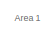
[diagram: root canvas - part 1/9, top center region]
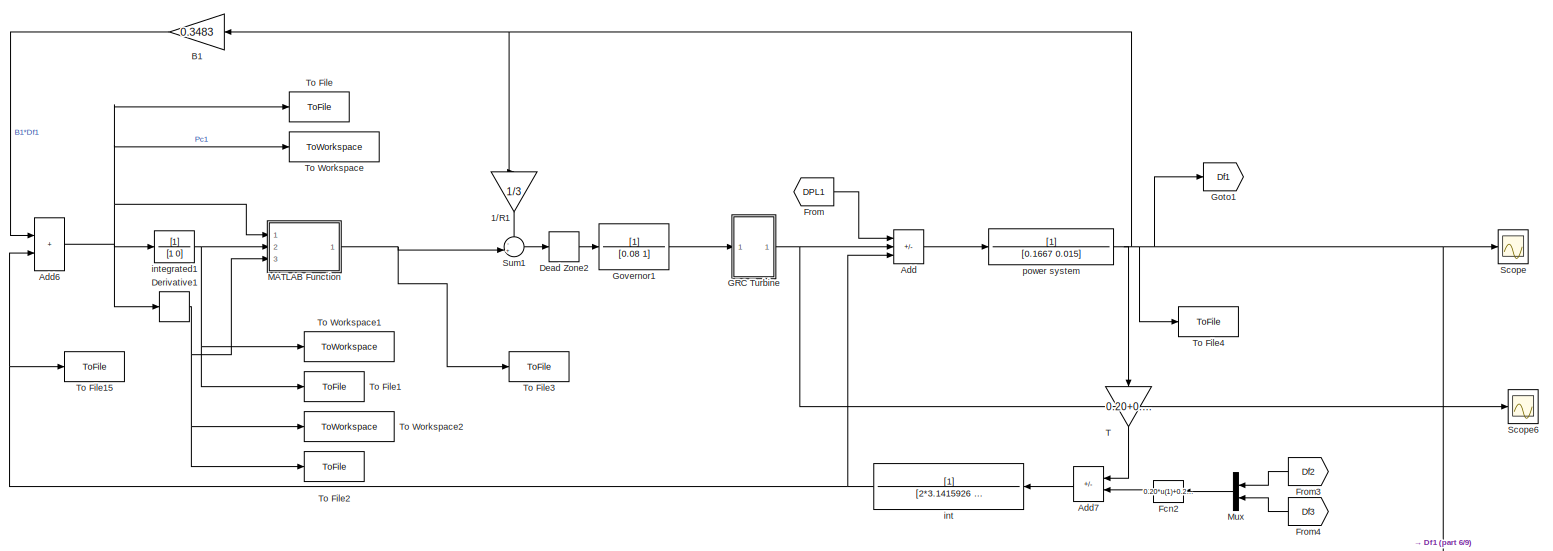
[diagram: root canvas - part 2/9, top right region]
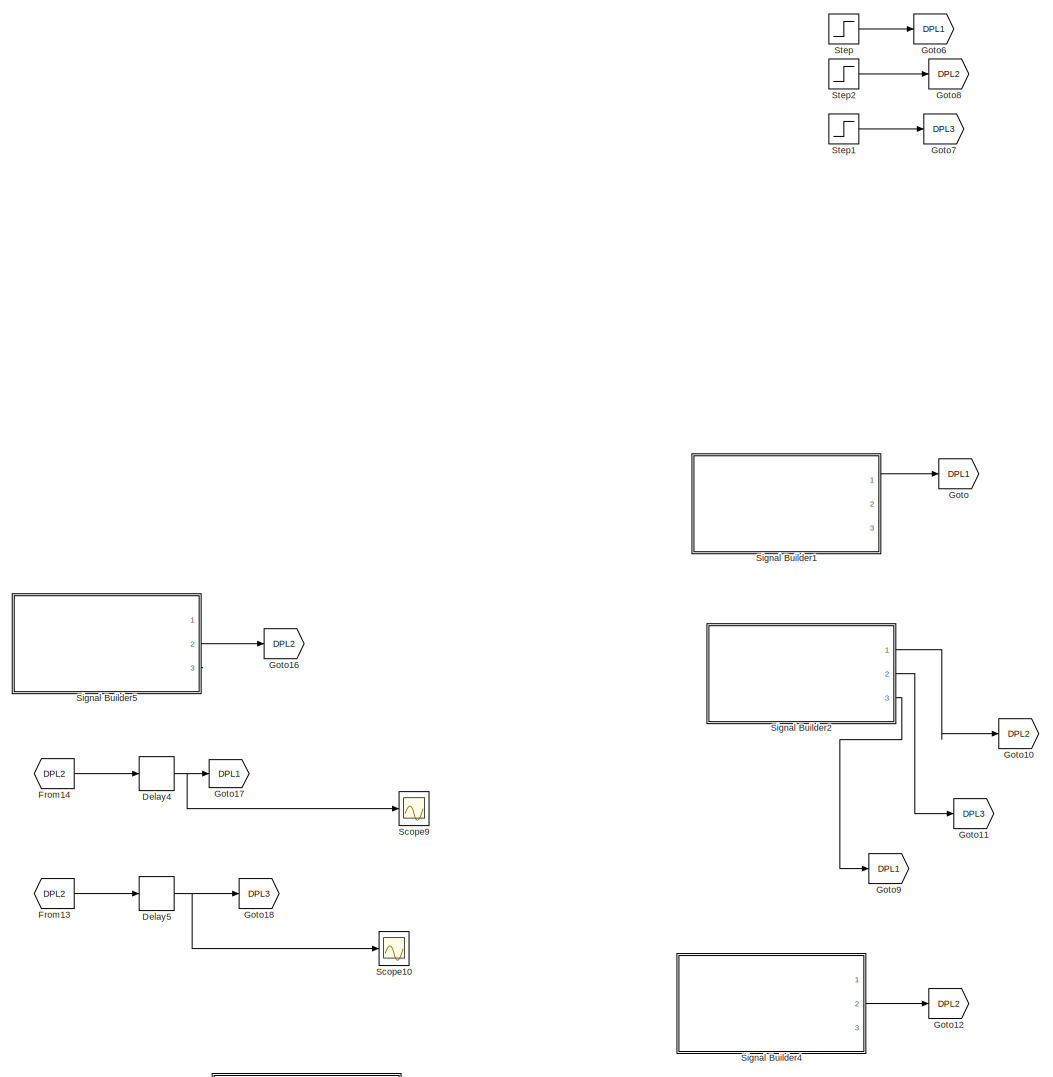
[diagram: root canvas - part 3/9, middle left region]
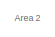
[diagram: root canvas - part 4/9, top center region]
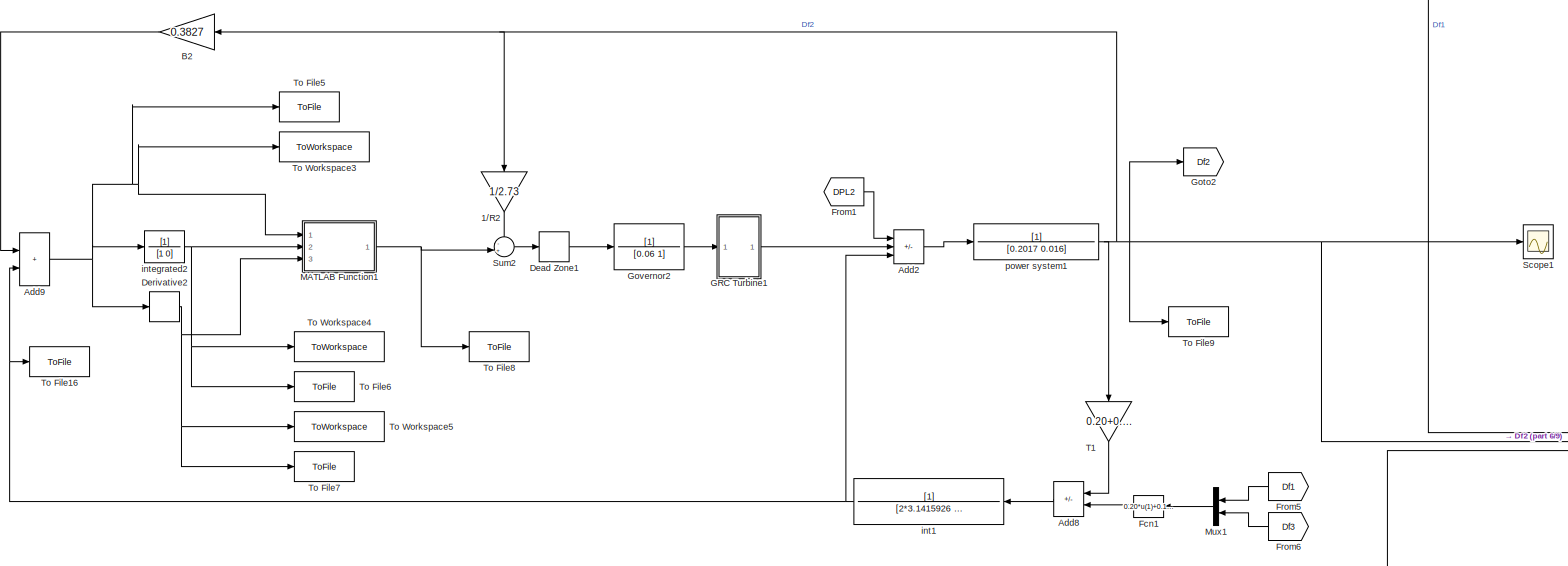
[diagram: root canvas - part 5/9, middle right region]
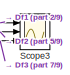
[diagram: root canvas - part 6/9, middle right region]
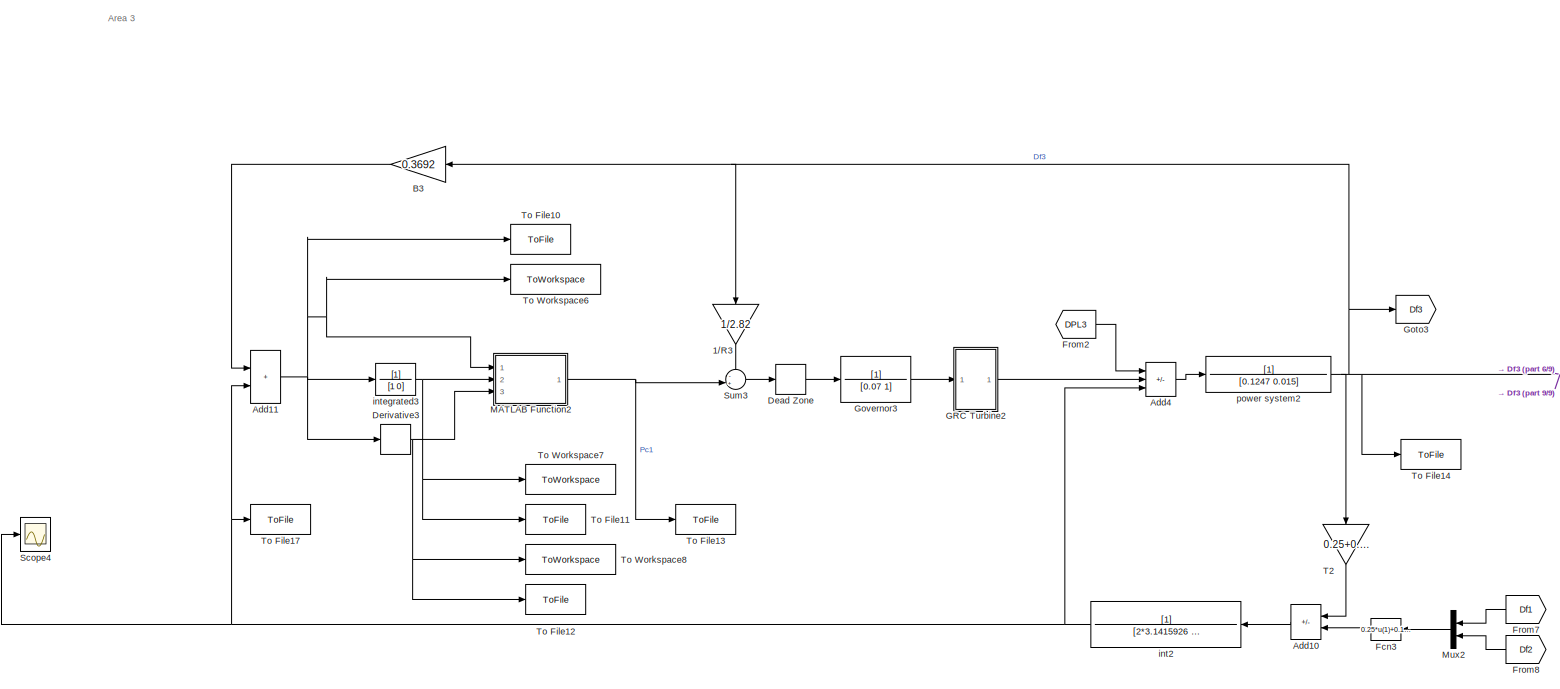
[diagram: root canvas - part 7/9, bottom right region]
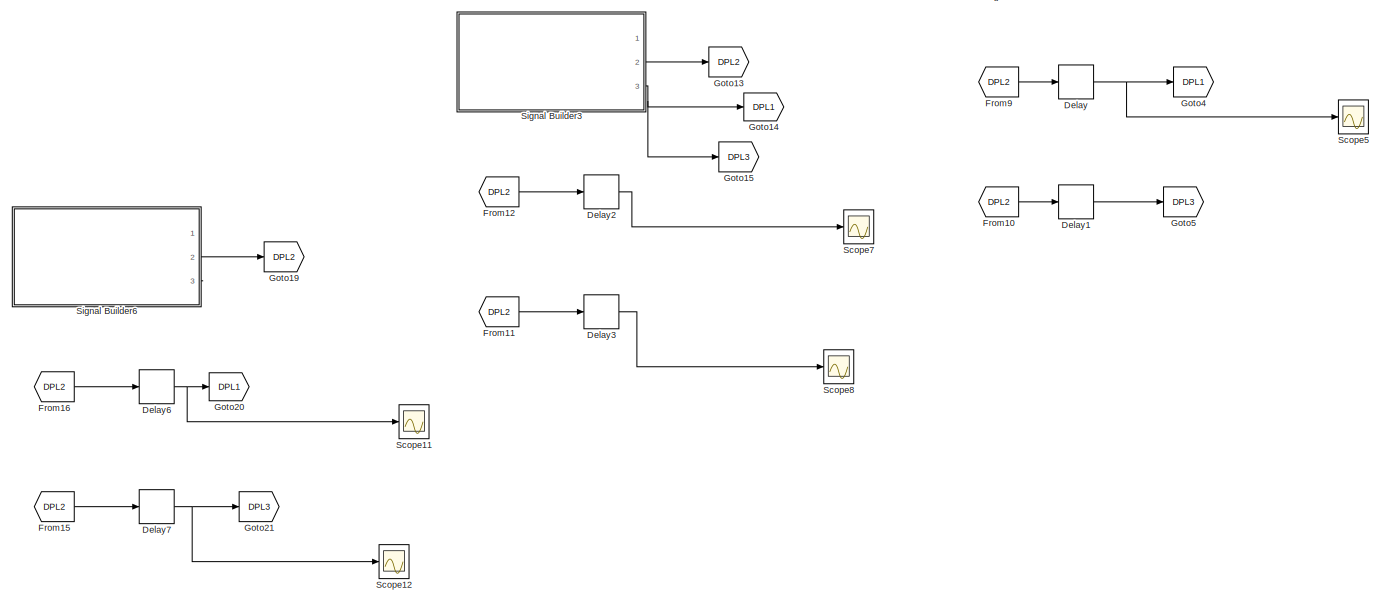
[diagram: root canvas - part 8/9, bottom left region]
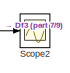
[diagram: root canvas - part 9/9, bottom right region]
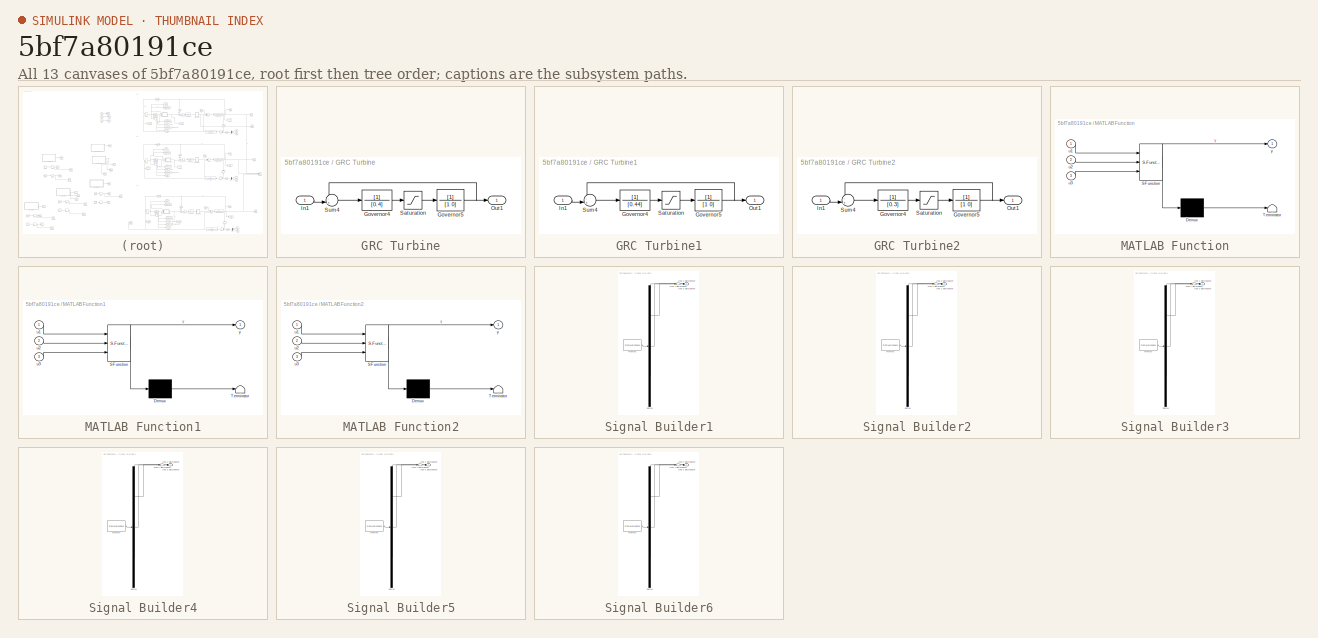
[diagram: thumbnail index - all 13 canvases of the model, root first then tree order]
MODEL slx_5bf7a80191ce
KIND model
CONFIG AbsTol = auto
CONFIG EnableMultiTasking = off
CONFIG FixedStep = 0.01
CONFIG MaxStep = auto
CONFIG MinStep = auto
CONFIG RelTol = 1e-3
CONFIG SampleTimeConstraint = Unconstrained
CONFIG SolverName = FixedStepAuto
CONFIG StartTime = 0.0
CONFIG StopTime = 350
BLOCK [Gain] 1//R1
  Gain = 1/3
  NameLocation = left
BLOCK [Gain] 1//R2
  Gain = 1/2.73
  NameLocation = left
BLOCK [Gain] 1//R3
  Gain = 1/2.82
  NameLocation = left
BLOCK [Sum] Add
  IconShape = rectangular
  Inputs = -+-
  Ports = [3, 1]
BLOCK [Sum] Add10
  IconShape = rectangular
  Inputs = +-
  NameLocation = top
  Ports = [2, 1]
BLOCK [Sum] Add11
  IconShape = rectangular
  Ports = [2, 1]
BLOCK [Sum] Add2
  IconShape = rectangular
  Inputs = -+-
  Ports = [3, 1]
BLOCK [Sum] Add4
  IconShape = rectangular
  Inputs = -+-
  Ports = [3, 1]
BLOCK [Sum] Add6
  IconShape = rectangular
  Ports = [2, 1]
BLOCK [Sum] Add7
  IconShape = rectangular
  Inputs = +-
  NameLocation = top
  Ports = [2, 1]
BLOCK [Sum] Add8
  IconShape = rectangular
  Inputs = +-
  NameLocation = top
  Ports = [2, 1]
BLOCK [Sum] Add9
  IconShape = rectangular
  Ports = [2, 1]
BLOCK [Gain] B1
  Gain = 0.3483
  NameLocation = top
BLOCK [Gain] B2
  Gain = 0.3827
  NameLocation = top
BLOCK [Gain] B3
  Gain = 0.3692
  NameLocation = top
BLOCK [DeadZone] Dead Zone
  LowerValue = -0.036
  UpperValue = 0.036
BLOCK [DeadZone] Dead Zone1
  LowerValue = -0.036
  UpperValue = 0.036
BLOCK [DeadZone] Dead Zone2
  LowerValue = -0.036
  UpperValue = 0.036
BLOCK [Delay] Delay
  Commented = on
  DelayLength = 3000
  InitialCondition = 0
  InputPortMap = u0
  Ports = [1, 1]
BLOCK [Delay] Delay1
  Commented = on
  DelayLength = 6000
  InitialCondition = 0
  InputPortMap = u0
  Ports = [1, 1]
BLOCK [Delay] Delay2
  Commented = on
  DelayLength = 3000
  InitialCondition = 0
  InputPortMap = u0
  Ports = [1, 1]
BLOCK [Delay] Delay3
  Commented = on
  DelayLength = 6000
  InitialCondition = 0
  InputPortMap = u0
  Ports = [1, 1]
BLOCK [Delay] Delay4
  Commented = on
  DelayLength = 5500
  InitialCondition = 0
  InputPortMap = u0
  Ports = [1, 1]
BLOCK [Delay] Delay5
  Commented = on
  DelayLength = 10500
  InitialCondition = 0
  InputPortMap = u0
  Ports = [1, 1]
BLOCK [Delay] Delay6
  DelayLength = 5500
  InitialCondition = 0
  InputPortMap = u0
  Ports = [1, 1]
BLOCK [Delay] Delay7
  DelayLength = 10500
  InitialCondition = 0
  InputPortMap = u0
  Ports = [1, 1]
BLOCK [Derivative] Derivative1
BLOCK [Derivative] Derivative2
BLOCK [Derivative] Derivative3
BLOCK [Fcn] Fcn1
  Expr = 0.20*u(1)+0.12*u(2)
  NameLocation = top
BLOCK [Fcn] Fcn2
  Expr = 0.20*u(1)+0.25*u(2)
  NameLocation = top
BLOCK [Fcn] Fcn3
  Expr = 0.25*u(1)+0.12*u(2)
  NameLocation = top
BLOCK [From] From
  GotoTag = DPL1
  NameLocation = top
BLOCK [From] From1
  GotoTag = DPL2
  NameLocation = top
BLOCK [From] From10
  Commented = on
  GotoTag = DPL2
BLOCK [From] From11
  Commented = on
  GotoTag = DPL2
BLOCK [From] From12
  Commented = on
  GotoTag = DPL2
BLOCK [From] From13
  Commented = on
  GotoTag = DPL2
BLOCK [From] From14
  Commented = on
  GotoTag = DPL2
BLOCK [From] From15
  GotoTag = DPL2
BLOCK [From] From16
  GotoTag = DPL2
BLOCK [From] From2
  GotoTag = DPL3
  NameLocation = top
BLOCK [From] From3
  GotoTag = Df2
  NameLocation = top
BLOCK [From] From4
  GotoTag = Df3
  NameLocation = top
BLOCK [From] From5
  GotoTag = Df1
  NameLocation = top
BLOCK [From] From6
  GotoTag = Df3
  NameLocation = top
BLOCK [From] From7
  GotoTag = Df1
  NameLocation = top
BLOCK [From] From8
  GotoTag = Df2
  NameLocation = top
BLOCK [From] From9
  Commented = on
  GotoTag = DPL2
BLOCK [SubSystem] GRC Turbine
  Ports = [1, 1]
  RequestExecContextInheritance = off
BLOCK [TransferFcn] GRC Turbine/Governor4
  Denominator = [0.4]
BLOCK [TransferFcn] GRC Turbine/Governor5
  Denominator = [1 0]
BLOCK [Inport] GRC Turbine/In1
BLOCK [Outport] GRC Turbine/Out1
BLOCK [Saturate] GRC Turbine/Saturation
  LowerLimit = -0.0017
  UpperLimit = 0.0017
BLOCK [Sum] GRC Turbine/Sum4
  Inputs = -+|
  NameLocation = top
  Ports = [2, 1]
BLOCK [SubSystem] GRC Turbine1
  Ports = [1, 1]
  RequestExecContextInheritance = off
BLOCK [TransferFcn] GRC Turbine1/Governor4
  Denominator = [0.44]
BLOCK [TransferFcn] GRC Turbine1/Governor5
  Denominator = [1 0]
BLOCK [Inport] GRC Turbine1/In1
BLOCK [Outport] GRC Turbine1/Out1
BLOCK [Saturate] GRC Turbine1/Saturation
  LowerLimit = -0.0017
  UpperLimit = 0.0017
BLOCK [Sum] GRC Turbine1/Sum4
  Inputs = -+|
  NameLocation = top
  Ports = [2, 1]
BLOCK [SubSystem] GRC Turbine2
  Ports = [1, 1]
  RequestExecContextInheritance = off
BLOCK [TransferFcn] GRC Turbine2/Governor4
  Denominator = [0.3]
BLOCK [TransferFcn] GRC Turbine2/Governor5
  Denominator = [1 0]
BLOCK [Inport] GRC Turbine2/In1
BLOCK [Outport] GRC Turbine2/Out1
BLOCK [Saturate] GRC Turbine2/Saturation
  LowerLimit = -0.0017
  UpperLimit = 0.0017
BLOCK [Sum] GRC Turbine2/Sum4
  Inputs = -+|
  NameLocation = top
  Ports = [2, 1]
BLOCK [Goto] Goto
  Commented = on
  GotoTag = DPL1
BLOCK [Goto] Goto1
  GotoTag = Df1
  NameLocation = top
BLOCK [Goto] Goto10
  Commented = on
  GotoTag = DPL2
BLOCK [Goto] Goto11
  Commented = on
  GotoTag = DPL3
BLOCK [Goto] Goto12
  Commented = on
  GotoTag = DPL2
BLOCK [Goto] Goto13
  Commented = on
  GotoTag = DPL2
BLOCK [Goto] Goto14
  Commented = on
  GotoTag = DPL1
BLOCK [Goto] Goto15
  Commented = on
  GotoTag = DPL3
BLOCK [Goto] Goto16
  Commented = on
  GotoTag = DPL2
BLOCK [Goto] Goto17
  Commented = on
  GotoTag = DPL1
BLOCK [Goto] Goto18
  Commented = on
  GotoTag = DPL3
BLOCK [Goto] Goto19
  GotoTag = DPL2
BLOCK [Goto] Goto2
  GotoTag = Df2
  NameLocation = top
BLOCK [Goto] Goto20
  GotoTag = DPL1
BLOCK [Goto] Goto21
  GotoTag = DPL3
BLOCK [Goto] Goto3
  GotoTag = Df3
  NameLocation = top
BLOCK [Goto] Goto4
  Commented = on
  GotoTag = DPL1
BLOCK [Goto] Goto5
  Commented = on
  GotoTag = DPL3
BLOCK [Goto] Goto6
  Commented = on
  GotoTag = DPL1
BLOCK [Goto] Goto7
  Commented = on
  GotoTag = DPL3
BLOCK [Goto] Goto8
  Commented = on
  GotoTag = DPL2
BLOCK [Goto] Goto9
  Commented = on
  GotoTag = DPL1
BLOCK [TransferFcn] Governor1
  Denominator = [0.08 1]
BLOCK [TransferFcn] Governor2
  Denominator = [0.06 1]
BLOCK [TransferFcn] Governor3
  Denominator = [0.07 1]
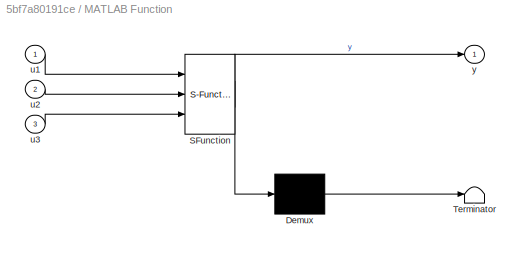
BLOCK [SubSystem] MATLAB Function
  ErrorFcn = Stateflow.Translate.translate
  PermitHierarchicalResolution = ExplicitOnly
  Ports = [3, 1]
  RequestExecContextInheritance = off
  SFBlockType = MATLAB Function
  TreatAsAtomicUnit = on
BLOCK [Demux] MATLAB Function/ Demux 
  Outputs = 1
  Ports = [1, 1]
BLOCK [S-Function] MATLAB Function/ SFunction 
  EnableBusSupport = on
  FunctionName = sf_sfun
  PortCounts = [3 2]
  Ports = [3, 2]
  SFcnIsStateOwnerBlock = off
  SFunctionDeploymentMode = off
  Tag = Stateflow S-Function 2
BLOCK [Terminator] MATLAB Function/ Terminator 
BLOCK [Inport] MATLAB Function/u1
BLOCK [Inport] MATLAB Function/u2
  Port = 2
BLOCK [Inport] MATLAB Function/u3
  Port = 3
BLOCK [Outport] MATLAB Function/y
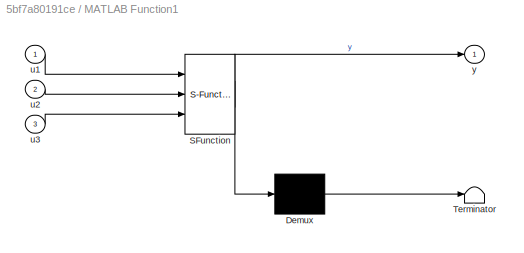
BLOCK [SubSystem] MATLAB Function1
  ErrorFcn = Stateflow.Translate.translate
  PermitHierarchicalResolution = ExplicitOnly
  Ports = [3, 1]
  RequestExecContextInheritance = off
  SFBlockType = MATLAB Function
  TreatAsAtomicUnit = on
BLOCK [Demux] MATLAB Function1/ Demux 
  Outputs = 1
  Ports = [1, 1]
BLOCK [S-Function] MATLAB Function1/ SFunction 
  EnableBusSupport = on
  FunctionName = sf_sfun
  PortCounts = [3 2]
  Ports = [3, 2]
  SFcnIsStateOwnerBlock = off
  SFunctionDeploymentMode = off
  Tag = Stateflow S-Function 1
BLOCK [Terminator] MATLAB Function1/ Terminator 
BLOCK [Inport] MATLAB Function1/u1
BLOCK [Inport] MATLAB Function1/u2
  Port = 2
BLOCK [Inport] MATLAB Function1/u3
  Port = 3
BLOCK [Outport] MATLAB Function1/y
BLOCK [SubSystem] MATLAB Function2
  ErrorFcn = Stateflow.Translate.translate
  PermitHierarchicalResolution = ExplicitOnly
  Ports = [3, 1]
  RequestExecContextInheritance = off
  SFBlockType = MATLAB Function
  TreatAsAtomicUnit = on
BLOCK [Demux] MATLAB Function2/ Demux 
  Outputs = 1
  Ports = [1, 1]
BLOCK [S-Function] MATLAB Function2/ SFunction 
  EnableBusSupport = on
  FunctionName = sf_sfun
  PortCounts = [3 2]
  Ports = [3, 2]
  SFcnIsStateOwnerBlock = off
  SFunctionDeploymentMode = off
  Tag = Stateflow S-Function 3
BLOCK [Terminator] MATLAB Function2/ Terminator 
BLOCK [Inport] MATLAB Function2/u1
BLOCK [Inport] MATLAB Function2/u2
  Port = 2
BLOCK [Inport] MATLAB Function2/u3
  Port = 3
BLOCK [Outport] MATLAB Function2/y
BLOCK [Mux] Mux
  DisplayOption = bar
  Inputs = 2
  NameLocation = top
  Ports = [2, 1]
BLOCK [Mux] Mux1
  DisplayOption = bar
  Inputs = 2
  NameLocation = top
  Ports = [2, 1]
BLOCK [Mux] Mux2
  DisplayOption = bar
  Inputs = 2
  NameLocation = top
  Ports = [2, 1]
BLOCK [Scope] Scope
  Floating = off
  NumInputPorts = 1
  Ports = [1]
  ScopeSpecificationString = Simulink.scopes.TimeScopeBlockCfg('CurrentConfiguration', extmgr.ConfigurationSet(extmgr.Configuration('Core','General UI',true),extmgr.Configuration('Core','Source UI',true),extmgr.Configuration('Sources','WiredSimulink',true),extmgr.Configuration('Visuals','Time Domain',true,'SerializedDisplays',{struct('MinYLimReal','-0.04947','MaxYLimReal','0.0479','YLabelReal','','MinYLimMag','0.00000','MaxYL...<+1402ch>
BLOCK [Scope] Scope1
  Floating = off
  NumInputPorts = 1
  Ports = [1]
  ScopeSpecificationString = Simulink.scopes.TimeScopeBlockCfg('CurrentConfiguration', extmgr.ConfigurationSet(extmgr.Configuration('Core','General UI',true),extmgr.Configuration('Core','Source UI',true),extmgr.Configuration('Sources','WiredSimulink',true,'DataLoggingVariableName','ScopeData1'),extmgr.Configuration('Visuals','Time Domain',true,'SerializedDisplays',{struct('MinYLimReal','-0.04552','MaxYLimReal','0.04614','YLab...<+1442ch>
BLOCK [Scope] Scope10
  Commented = on
  Floating = off
  NumInputPorts = 1
  Ports = [1]
  ScopeSpecificationString = Simulink.scopes.TimeScopeBlockCfg('CurrentConfiguration', extmgr.ConfigurationSet(extmgr.Configuration('Core','General UI',true),extmgr.Configuration('Core','Source UI',true),extmgr.Configuration('Sources','WiredSimulink',true,'DataLoggingVariableName','ScopeData1'),extmgr.Configuration('Visuals','Time Domain',true,'SerializedDisplays',{struct('MinYLimReal','-0.00125','MaxYLimReal','0.01125','YLab...<+1450ch>
BLOCK [Scope] Scope11
  Floating = off
  NumInputPorts = 1
  Ports = [1]
  ScopeSpecificationString = Simulink.scopes.TimeScopeBlockCfg('CurrentConfiguration', extmgr.ConfigurationSet(extmgr.Configuration('Core','General UI',true),extmgr.Configuration('Core','Source UI',true),extmgr.Configuration('Sources','WiredSimulink',true,'DataLoggingVariableName','ScopeData1'),extmgr.Configuration('Visuals','Time Domain',true,'SerializedDisplays',{struct('MinYLimReal','-0.00125','MaxYLimReal','0.01125','YLab...<+1449ch>
BLOCK [Scope] Scope12
  Floating = off
  NumInputPorts = 1
  Ports = [1]
  ScopeSpecificationString = Simulink.scopes.TimeScopeBlockCfg('CurrentConfiguration', extmgr.ConfigurationSet(extmgr.Configuration('Core','General UI',true),extmgr.Configuration('Core','Source UI',true),extmgr.Configuration('Sources','WiredSimulink',true,'DataLoggingVariableName','ScopeData2'),extmgr.Configuration('Visuals','Time Domain',true,'SerializedDisplays',{struct('MinYLimReal','-0.00125','MaxYLimReal','0.01125','YLab...<+1450ch>
BLOCK [Scope] Scope2
  Floating = off
  NumInputPorts = 1
  Ports = [1]
  ScopeSpecificationString = Simulink.scopes.TimeScopeBlockCfg('CurrentConfiguration', extmgr.ConfigurationSet(extmgr.Configuration('Core','General UI',true),extmgr.Configuration('Core','Source UI',true),extmgr.Configuration('Sources','WiredSimulink',true,'DataLoggingVariableName','ScopeData2'),extmgr.Configuration('Visuals','Time Domain',true,'SerializedDisplays',{struct('MinYLimReal','-0.00445','MaxYLimReal','0.00439','YLab...<+1441ch>
BLOCK [Scope] Scope3
  Floating = off
  NumInputPorts = 3
  Ports = [3]
  ScopeSpecificationString = Simulink.scopes.TimeScopeBlockCfg('CurrentConfiguration', extmgr.ConfigurationSet(extmgr.Configuration('Core','General UI',true,'FigureColor',[1 1 1]),extmgr.Configuration('Core','Source UI',true),extmgr.Configuration('Sources','WiredSimulink',true,'DataLoggingVariableName','ScopeData1'),extmgr.Configuration('Visuals','Time Domain',true,'SerializedDisplays',{struct('MinYLimReal','-0.08429','MaxYLi...<+3254ch>
BLOCK [Scope] Scope4
  Floating = off
  NumInputPorts = 1
  Ports = [1]
  ScopeSpecificationString = Simulink.scopes.TimeScopeBlockCfg('CurrentConfiguration', extmgr.ConfigurationSet(extmgr.Configuration('Core','General UI',true),extmgr.Configuration('Core','Source UI',true),extmgr.Configuration('Sources','WiredSimulink',true,'DataLoggingVariableName','ScopeData1'),extmgr.Configuration('Visuals','Time Domain',true,'SerializedDisplays',{struct('MinYLimReal','-0.00012','MaxYLimReal','0.00014','YLab...<+1459ch>
BLOCK [Scope] Scope5
  Commented = on
  Floating = off
  NumInputPorts = 1
  Ports = [1]
  ScopeSpecificationString = Simulink.scopes.TimeScopeBlockCfg('CurrentConfiguration', extmgr.ConfigurationSet(extmgr.Configuration('Core','General UI',true),extmgr.Configuration('Core','Source UI',true),extmgr.Configuration('Sources','WiredSimulink',true,'DataLoggingVariableName','ScopeData1'),extmgr.Configuration('Visuals','Time Domain',true,'SerializedDisplays',{struct('MinYLimReal','-0.01375','MaxYLimReal','0.02375','YLab...<+1449ch>
BLOCK [Scope] Scope6
  Floating = off
  NumInputPorts = 1
  Ports = [1]
  ScopeSpecificationString = Simulink.scopes.TimeScopeBlockCfg('CurrentConfiguration', extmgr.ConfigurationSet(extmgr.Configuration('Core','General UI',true),extmgr.Configuration('Core','Source UI',true),extmgr.Configuration('Sources','WiredSimulink',true,'DataLoggingVariableName','ScopeData1'),extmgr.Configuration('Visuals','Time Domain',true,'SerializedDisplays',{struct('MinYLimReal','-0.00225','MaxYLimReal','0.02028','YLab...<+1451ch>
BLOCK [Scope] Scope7
  Commented = on
  Floating = off
  NumInputPorts = 1
  Ports = [1]
  ScopeSpecificationString = Simulink.scopes.TimeScopeBlockCfg('CurrentConfiguration', extmgr.ConfigurationSet(extmgr.Configuration('Core','General UI',true),extmgr.Configuration('Core','Source UI',true),extmgr.Configuration('Sources','WiredSimulink',true,'DataLoggingVariableName','ScopeData1'),extmgr.Configuration('Visuals','Time Domain',true,'SerializedDisplays',{struct('MinYLimReal','-0.00125','MaxYLimReal','0.01125','YLab...<+1449ch>
BLOCK [Scope] Scope8
  Commented = on
  Floating = off
  NumInputPorts = 1
  Ports = [1]
  ScopeSpecificationString = Simulink.scopes.TimeScopeBlockCfg('CurrentConfiguration', extmgr.ConfigurationSet(extmgr.Configuration('Core','General UI',true),extmgr.Configuration('Core','Source UI',true),extmgr.Configuration('Sources','WiredSimulink',true,'DataLoggingVariableName','ScopeData2'),extmgr.Configuration('Visuals','Time Domain',true,'SerializedDisplays',{struct('MinYLimReal','-0.00125','MaxYLimReal','0.01125','YLab...<+1450ch>
BLOCK [Scope] Scope9
  Commented = on
  Floating = off
  NumInputPorts = 1
  Ports = [1]
  ScopeSpecificationString = Simulink.scopes.TimeScopeBlockCfg('CurrentConfiguration', extmgr.ConfigurationSet(extmgr.Configuration('Core','General UI',true),extmgr.Configuration('Core','Source UI',true),extmgr.Configuration('Sources','WiredSimulink',true,'DataLoggingVariableName','ScopeData2'),extmgr.Configuration('Visuals','Time Domain',true,'SerializedDisplays',{struct('MinYLimReal','-0.00125','MaxYLimReal','0.01125','YLab...<+1449ch>
BLOCK [SubSystem] Signal Builder1
  ClipboardFcn = sigbuilder_block('clipboard');
  CloseFcn = sigbuilder_block('close');
  Commented = on
  ContinueFcn = sigbuilder_block('continue');
  CopyFcn = sigbuilder_block('copy');
  DeleteFcn = sigbuilder_block('delete');
  LoadFcn = sigbuilder_block('load');
  MaskHideContents = on
  ModelCloseFcn = sigbuilder_block('modelClose');
  NameChangeFcn = sigbuilder_block('namechange');
  OpenFcn = sigbuilder_block('open',[0 30 1152 562.2 ]);
  PauseFcn = sigbuilder_block('pause');
  Ports = [0, 3]
  PreSaveFcn = sigbuilder_block('preSave');
  RequestExecContextInheritance = off
  StartFcn = sigbuilder_block('start');
  StopFcn = sigbuilder_block('stop');
  Tag = STV Subsys
BLOCK [Outport] Signal Builder1/Area 1 disturbance
  Tag = STV Outport
BLOCK [Outport] Signal Builder1/Area 2 disturbance
  Port = 2
  Tag = STV Outport
BLOCK [Outport] Signal Builder1/Area 3 disturbance
  Port = 3
  Tag = STV Outport
BLOCK [Demux] Signal Builder1/Demux
  DisplayOption = none
  Outputs = 3
  Ports = [1, 3]
  Tag = STV Demux
BLOCK [FromWorkspace] Signal Builder1/FromWs
  Tag = STV FromWs
  VariableName = tuvar
BLOCK [SubSystem] Signal Builder2
  ClipboardFcn = sigbuilder_block('clipboard');
  CloseFcn = sigbuilder_block('close');
  Commented = on
  ContinueFcn = sigbuilder_block('continue');
  CopyFcn = sigbuilder_block('copy');
  DeleteFcn = sigbuilder_block('delete');
  LoadFcn = sigbuilder_block('load');
  MaskHideContents = on
  ModelCloseFcn = sigbuilder_block('modelClose');
  NameChangeFcn = sigbuilder_block('namechange');
  OpenFcn = sigbuilder_block('open',[0 30 1152 562.2 ]);
  PauseFcn = sigbuilder_block('pause');
  Ports = [0, 3]
  PreSaveFcn = sigbuilder_block('preSave');
  RequestExecContextInheritance = off
  StartFcn = sigbuilder_block('start');
  StopFcn = sigbuilder_block('stop');
  Tag = STV Subsys
BLOCK [Outport] Signal Builder2/Area 1 disturbance
  Port = 3
  Tag = STV Outport
BLOCK [Outport] Signal Builder2/Area 2 disturbance
  Tag = STV Outport
BLOCK [Outport] Signal Builder2/Area 3 disturbance
  Port = 2
  Tag = STV Outport
BLOCK [Demux] Signal Builder2/Demux
  DisplayOption = none
  Outputs = 3
  Ports = [1, 3]
  Tag = STV Demux
BLOCK [FromWorkspace] Signal Builder2/FromWs
  Tag = STV FromWs
  VariableName = tuvar
BLOCK [SubSystem] Signal Builder3
  ClipboardFcn = sigbuilder_block('clipboard');
  CloseFcn = sigbuilder_block('close');
  Commented = on
  ContinueFcn = sigbuilder_block('continue');
  CopyFcn = sigbuilder_block('copy');
  DeleteFcn = sigbuilder_block('delete');
  LoadFcn = sigbuilder_block('load');
  MaskHideContents = on
  ModelCloseFcn = sigbuilder_block('modelClose');
  NameChangeFcn = sigbuilder_block('namechange');
  OpenFcn = sigbuilder_block('open',[48 36.75 1141.5 523.5 ]);
  PauseFcn = sigbuilder_block('pause');
  Ports = [0, 3]
  PreSaveFcn = sigbuilder_block('preSave');
  RequestExecContextInheritance = off
  StartFcn = sigbuilder_block('start');
  StopFcn = sigbuilder_block('stop');
  Tag = STV Subsys
BLOCK [Outport] Signal Builder3/Area 1 disturbance
  Tag = STV Outport
BLOCK [Outport] Signal Builder3/Area 2 disturbance
  Port = 2
  Tag = STV Outport
BLOCK [Outport] Signal Builder3/Area 3 disturbance
  Port = 3
  Tag = STV Outport
BLOCK [Demux] Signal Builder3/Demux
  DisplayOption = none
  Outputs = 3
  Ports = [1, 3]
  Tag = STV Demux
BLOCK [FromWorkspace] Signal Builder3/FromWs
  Tag = STV FromWs
  VariableName = tuvar
BLOCK [SubSystem] Signal Builder4
  ClipboardFcn = sigbuilder_block('clipboard');
  CloseFcn = sigbuilder_block('close');
  Commented = on
  ContinueFcn = sigbuilder_block('continue');
  CopyFcn = sigbuilder_block('copy');
  DeleteFcn = sigbuilder_block('delete');
  LoadFcn = sigbuilder_block('load');
  MaskHideContents = on
  ModelCloseFcn = sigbuilder_block('modelClose');
  NameChangeFcn = sigbuilder_block('namechange');
  OpenFcn = sigbuilder_block('open',[48 36.75 1141.5 523.5 ]);
  PauseFcn = sigbuilder_block('pause');
  Ports = [0, 3]
  PreSaveFcn = sigbuilder_block('preSave');
  RequestExecContextInheritance = off
  StartFcn = sigbuilder_block('start');
  StopFcn = sigbuilder_block('stop');
  Tag = STV Subsys
BLOCK [Outport] Signal Builder4/Area 1 disturbance
  Tag = STV Outport
BLOCK [Outport] Signal Builder4/Area 2 disturbance
  Port = 2
  Tag = STV Outport
BLOCK [Outport] Signal Builder4/Area 3 disturbance
  Port = 3
  Tag = STV Outport
BLOCK [Demux] Signal Builder4/Demux
  DisplayOption = none
  Outputs = 3
  Ports = [1, 3]
  Tag = STV Demux
BLOCK [FromWorkspace] Signal Builder4/FromWs
  Tag = STV FromWs
  VariableName = tuvar
BLOCK [SubSystem] Signal Builder5
  ClipboardFcn = sigbuilder_block('clipboard');
  CloseFcn = sigbuilder_block('close');
  Commented = on
  ContinueFcn = sigbuilder_block('continue');
  CopyFcn = sigbuilder_block('copy');
  DeleteFcn = sigbuilder_block('delete');
  LoadFcn = sigbuilder_block('load');
  MaskHideContents = on
  ModelCloseFcn = sigbuilder_block('modelClose');
  NameChangeFcn = sigbuilder_block('namechange');
  OpenFcn = sigbuilder_block('open',[48 36.75 1141.5 523.5 ]);
  PauseFcn = sigbuilder_block('pause');
  Ports = [0, 3]
  PreSaveFcn = sigbuilder_block('preSave');
  RequestExecContextInheritance = off
  StartFcn = sigbuilder_block('start');
  StopFcn = sigbuilder_block('stop');
  Tag = STV Subsys
BLOCK [Outport] Signal Builder5/Area 1 disturbance
  Tag = STV Outport
BLOCK [Outport] Signal Builder5/Area 2 disturbance
  Port = 2
  Tag = STV Outport
BLOCK [Outport] Signal Builder5/Area 3 disturbance
  Port = 3
  Tag = STV Outport
BLOCK [Demux] Signal Builder5/Demux
  DisplayOption = none
  Outputs = 3
  Ports = [1, 3]
  Tag = STV Demux
BLOCK [FromWorkspace] Signal Builder5/FromWs
  Tag = STV FromWs
  VariableName = tuvar
BLOCK [SubSystem] Signal Builder6
  ClipboardFcn = sigbuilder_block('clipboard');
  CloseFcn = sigbuilder_block('close');
  ContinueFcn = sigbuilder_block('continue');
  CopyFcn = sigbuilder_block('copy');
  DeleteFcn = sigbuilder_block('delete');
  LoadFcn = sigbuilder_block('load');
  MaskHideContents = on
  ModelCloseFcn = sigbuilder_block('modelClose');
  NameChangeFcn = sigbuilder_block('namechange');
  OpenFcn = sigbuilder_block('open',[-252 55.8 1141.2 485.4 ]);
  PauseFcn = sigbuilder_block('pause');
  Ports = [0, 3]
  PreSaveFcn = sigbuilder_block('preSave');
  RequestExecContextInheritance = off
  StartFcn = sigbuilder_block('start');
  StopFcn = sigbuilder_block('stop');
  Tag = STV Subsys
BLOCK [Outport] Signal Builder6/Area 1 disturbance
  Tag = STV Outport
BLOCK [Outport] Signal Builder6/Area 2 disturbance
  Port = 2
  Tag = STV Outport
BLOCK [Outport] Signal Builder6/Area 3 disturbance
  Port = 3
  Tag = STV Outport
BLOCK [Demux] Signal Builder6/Demux
  DisplayOption = none
  Outputs = 3
  Ports = [1, 3]
  Tag = STV Demux
BLOCK [FromWorkspace] Signal Builder6/FromWs
  Tag = STV FromWs
  VariableName = tuvar
BLOCK [Step] Step
  After = 0.02
  Commented = on
  SampleTime = 0
BLOCK [Step] Step1
  After = 0.02
  Commented = on
  SampleTime = 0
BLOCK [Step] Step2
  After = 0
  Commented = on
  SampleTime = 0
BLOCK [Sum] Sum1
  Inputs = -+|
  NameLocation = top
  Ports = [2, 1]
BLOCK [Sum] Sum2
  Inputs = -+|
  NameLocation = top
  Ports = [2, 1]
BLOCK [Sum] Sum3
  Inputs = -+|
  NameLocation = top
  Ports = [2, 1]
BLOCK [Gain] T
  Gain = 0.20+0.25
  NameLocation = left
BLOCK [Gain] T1
  Gain = 0.20+0.12
  NameLocation = left
BLOCK [Gain] T2
  Gain = 0.25+0.12
  NameLocation = left
BLOCK [ToFile] To File
  Filename = simulinkData\ACE_pro.mat
  Ports = [1]
  SampleTime = 0.01
BLOCK [ToFile] To File1
  Filename = simulinkData\ACE_inte.mat
  Ports = [1]
  SampleTime = 0.01
BLOCK [ToFile] To File10
  Filename = simulinkData\ACE_pro2.mat
  Ports = [1]
  SampleTime = 0.01
BLOCK [ToFile] To File11
  Filename = simulinkData\ACE_inte2.mat
  Ports = [1]
  SampleTime = 0.01
BLOCK [ToFile] To File12
  Filename = simulinkData\ACE_dev2.mat
  Ports = [1]
  SampleTime = 0.01
BLOCK [ToFile] To File13
  Filename = simulinkData\delta_Pc2.mat
  Ports = [1]
  SampleTime = 0.01
BLOCK [ToFile] To File14
  Filename = simulinkData\delta_f2.mat
  Ports = [1]
  SampleTime = 0.01
BLOCK [ToFile] To File15
  Filename = simulinkData\Ptie.mat
  Ports = [1]
  SampleTime = 0.01
BLOCK [ToFile] To File16
  Filename = simulinkData\Ptie1.mat
  Ports = [1]
  SampleTime = 0.01
BLOCK [ToFile] To File17
  Filename = simulinkData\Ptie2.mat
  Ports = [1]
  SampleTime = 0.01
BLOCK [ToFile] To File2
  Filename = simulinkData\ACE_dev.mat
  Ports = [1]
  SampleTime = 0.01
BLOCK [ToFile] To File3
  Filename = simulinkData\delta_Pc.mat
  Ports = [1]
  SampleTime = 0.01
BLOCK [ToFile] To File4
  Filename = simulinkData\delta_f.mat
  Ports = [1]
  SampleTime = 0.01
BLOCK [ToFile] To File5
  Filename = simulinkData\ACE_pro1.mat
  Ports = [1]
  SampleTime = 0.01
BLOCK [ToFile] To File6
  Filename = simulinkData\ACE_inte1.mat
  Ports = [1]
  SampleTime = 0.01
BLOCK [ToFile] To File7
  Filename = simulinkData\ACE_dev1.mat
  Ports = [1]
  SampleTime = 0.01
BLOCK [ToFile] To File8
  Filename = simulinkData\delta_Pc1.mat
  Ports = [1]
  SampleTime = 0.01
BLOCK [ToFile] To File9
  Filename = simulinkData\delta_f1.mat
  Ports = [1]
  SampleTime = 0.01
BLOCK [ToWorkspace] To Workspace
  FixptAsFi = on
  MaxDataPoints = inf
  Ports = [1]
  SampleTime = 0.01
  SaveFormat = Timeseries
  VariableName = ACE_pro
BLOCK [ToWorkspace] To Workspace1
  FixptAsFi = on
  MaxDataPoints = inf
  Ports = [1]
  SampleTime = 0.01
  SaveFormat = Timeseries
  VariableName = ACE_inte
BLOCK [ToWorkspace] To Workspace2
  FixptAsFi = on
  MaxDataPoints = inf
  Ports = [1]
  SampleTime = 0.01
  SaveFormat = Timeseries
  VariableName = ACE_dev
BLOCK [ToWorkspace] To Workspace3
  FixptAsFi = on
  MaxDataPoints = inf
  Ports = [1]
  SampleTime = 0.01
  SaveFormat = Timeseries
  VariableName = ACE_pro1
BLOCK [ToWorkspace] To Workspace4
  FixptAsFi = on
  MaxDataPoints = inf
  Ports = [1]
  SampleTime = 0.01
  SaveFormat = Timeseries
  VariableName = ACE_inte1
BLOCK [ToWorkspace] To Workspace5
  FixptAsFi = on
  MaxDataPoints = inf
  Ports = [1]
  SampleTime = 0.01
  SaveFormat = Timeseries
  VariableName = ACE_dev1
BLOCK [ToWorkspace] To Workspace6
  FixptAsFi = on
  MaxDataPoints = inf
  Ports = [1]
  SampleTime = 0.01
  SaveFormat = Timeseries
  VariableName = ACE_pro2
BLOCK [ToWorkspace] To Workspace7
  FixptAsFi = on
  MaxDataPoints = inf
  Ports = [1]
  SampleTime = 0.01
  SaveFormat = Timeseries
  VariableName = ACE_inte2
BLOCK [ToWorkspace] To Workspace8
  FixptAsFi = on
  MaxDataPoints = inf
  Ports = [1]
  SampleTime = 0.01
  SaveFormat = Timeseries
  VariableName = ACE_dev2
BLOCK [TransferFcn] int
  Denominator = [2*3.1415926 0]
  NameLocation = top
BLOCK [TransferFcn] int1
  Denominator = [2*3.1415926 0]
  NameLocation = top
BLOCK [TransferFcn] int2
  Denominator = [2*3.1415926 0]
  NameLocation = top
BLOCK [TransferFcn] integrated1
  Denominator = [1 0]
BLOCK [TransferFcn] integrated2
  Denominator = [1 0]
BLOCK [TransferFcn] integrated3
  Denominator = [1 0]
BLOCK [TransferFcn] power system
  Denominator = [0.1667 0.015]
BLOCK [TransferFcn] power system1
  Denominator = [0.2017 0.016]
BLOCK [TransferFcn] power system2
  Denominator = [0.1247 0.015]
ANNOTATION (root): Area 1
ANNOTATION (root): Area 2
ANNOTATION (root): Area 3
LINE 1//R1:1 -> Sum1:1
LINE 1//R2:1 -> Sum2:1
LINE 1//R3:1 -> Sum3:1
LINE Add10:1 -> int2:1
NET Add11:1 -> Derivative3:1, MATLAB Function2:1, To File10:1, To Workspace6:1, integrated3:1
LINE Add2:1 -> power system1:1
LINE Add4:1 -> power system2:1
NET Add6:1 -> Derivative1:1, MATLAB Function:1, To File:1, To Workspace:1, integrated1:1
LINE Add7:1 -> int:1
LINE Add8:1 -> int1:1
NET Add9:1 -> Derivative2:1, MATLAB Function1:1, To File5:1, To Workspace3:1, integrated2:1
LINE Add:1 -> power system:1
LINE B1:1 -> Add6:1
LINE B2:1 -> Add9:1
LINE B3:1 -> Add11:1
LINE Dead Zone1:1 -> Governor2:1
LINE Dead Zone2:1 -> Governor1:1
LINE Dead Zone:1 -> Governor3:1
LINE Delay1:1 -> Goto5:1
LINE Delay2:1 -> Scope7:1
LINE Delay3:1 -> Scope8:1
NET Delay4:1 -> Goto17:1, Scope9:1
NET Delay5:1 -> Goto18:1, Scope10:1
NET Delay6:1 -> Goto20:1, Scope11:1
NET Delay7:1 -> Goto21:1, Scope12:1
NET Delay:1 -> Goto4:1, Scope5:1
NET Derivative1:1 -> MATLAB Function:3, To File2:1, To Workspace2:1
NET Derivative2:1 -> MATLAB Function1:3, To File7:1, To Workspace5:1
NET Derivative3:1 -> MATLAB Function2:3, To File12:1, To Workspace8:1
LINE Fcn1:1 -> Add8:2
LINE Fcn2:1 -> Add7:2
LINE Fcn3:1 -> Add10:2
LINE From10:1 -> Delay1:1
LINE From11:1 -> Delay3:1
LINE From12:1 -> Delay2:1
LINE From13:1 -> Delay5:1
LINE From14:1 -> Delay4:1
LINE From15:1 -> Delay7:1
LINE From16:1 -> Delay6:1
LINE From1:1 -> Add2:1
LINE From2:1 -> Add4:1
LINE From3:1 -> Mux:1
LINE From4:1 -> Mux:2
LINE From5:1 -> Mux1:1
LINE From6:1 -> Mux1:2
LINE From7:1 -> Mux2:1
LINE From8:1 -> Mux2:2
LINE From9:1 -> Delay:1
LINE From:1 -> Add:1
LINE GRC Turbine/Governor4:1 -> GRC Turbine/Saturation:1
NET GRC Turbine/Governor5:1 -> GRC Turbine/Out1:1, GRC Turbine/Sum4:1
LINE GRC Turbine/In1:1 -> GRC Turbine/Sum4:2
LINE GRC Turbine/Saturation:1 -> GRC Turbine/Governor5:1
LINE GRC Turbine/Sum4:1 -> GRC Turbine/Governor4:1
LINE GRC Turbine1/Governor4:1 -> GRC Turbine1/Saturation:1
NET GRC Turbine1/Governor5:1 -> GRC Turbine1/Out1:1, GRC Turbine1/Sum4:1
LINE GRC Turbine1/In1:1 -> GRC Turbine1/Sum4:2
LINE GRC Turbine1/Saturation:1 -> GRC Turbine1/Governor5:1
LINE GRC Turbine1/Sum4:1 -> GRC Turbine1/Governor4:1
LINE GRC Turbine1:1 -> Add2:2
LINE GRC Turbine2/Governor4:1 -> GRC Turbine2/Saturation:1
NET GRC Turbine2/Governor5:1 -> GRC Turbine2/Out1:1, GRC Turbine2/Sum4:1
LINE GRC Turbine2/In1:1 -> GRC Turbine2/Sum4:2
LINE GRC Turbine2/Saturation:1 -> GRC Turbine2/Governor5:1
LINE GRC Turbine2/Sum4:1 -> GRC Turbine2/Governor4:1
LINE GRC Turbine2:1 -> Add4:2
NET GRC Turbine:1 -> Add:2, Scope6:1
LINE Governor1:1 -> GRC Turbine:1
LINE Governor2:1 -> GRC Turbine1:1
LINE Governor3:1 -> GRC Turbine2:1
NET MATLAB Function1:1 -> Sum2:2, To File8:1
NET MATLAB Function2:1 -> Sum3:2, To File13:1
NET MATLAB Function:1 -> Sum1:2, To File3:1
LINE Mux1:1 -> Fcn1:1
LINE Mux2:1 -> Fcn3:1
LINE Mux:1 -> Fcn2:1
LINE Signal Builder1:1 -> Goto:1
LINE Signal Builder2:1 -> Goto10:1
LINE Signal Builder2:2 -> Goto11:1
LINE Signal Builder2:3 -> Goto9:1
LINE Signal Builder3:2 -> Goto13:1
NET Signal Builder3:3 -> Goto14:1, Goto15:1
LINE Signal Builder4:2 -> Goto12:1
LINE Signal Builder5:2 -> Goto16:1
LINE Signal Builder6:2 -> Goto19:1
LINE Step1:1 -> Goto7:1
LINE Step2:1 -> Goto8:1
LINE Step:1 -> Goto6:1
LINE Sum1:1 -> Dead Zone2:1
LINE Sum2:1 -> Dead Zone1:1
LINE Sum3:1 -> Dead Zone:1
LINE T1:1 -> Add8:1
LINE T2:1 -> Add10:1
LINE T:1 -> Add7:1
NET int1:1 -> Add2:3, Add9:2, To File16:1
NET int2:1 -> Add11:2, Add4:3, Scope4:1, To File17:1
NET int:1 -> Add6:2, Add:3, To File15:1
NET integrated1:1 -> MATLAB Function:2, To File1:1, To Workspace1:1
NET integrated2:1 -> MATLAB Function1:2, To File6:1, To Workspace4:1
NET integrated3:1 -> MATLAB Function2:2, To File11:1, To Workspace7:1
NET power system1:1 -> 1//R2:1, B2:1, Goto2:1, Scope1:1, Scope3:2, T1:1, To File9:1
NET power system2:1 -> 1//R3:1, B3:1, Goto3:1, Scope2:1, Scope3:3, T2:1, To File14:1
NET power system:1 -> 1//R1:1, B1:1, Goto1:1, Scope3:1, Scope:1, T:1, To File4:1
note: NET lines group one-source signal fan-out (src -> all destinations, sorted); 1:1 wires keep LINE
CHART MATLAB Function1 states=1 transitions=1
  STATE_LABEL 'eML_blk_kernel()'
  STATE_LABEL "SCRIPT:\nfunction y = fcn(u1, u2 ,u3)\nnum =2;\nnetone = coder.loadDeepLearningNetwork('bbb.mat');\nstatemax = [[0.0289, 0.00018055, 0.0209]\n                     [0.0303, 0.0647, 0.0190]\n                     [0.02364, 0.02747, 0.0296]];\nstatemin = [[-0.0313, -0.4555, -0.0216]\n                     [-0.0322, -0.1337, -0.0191]\n                     [-0.0363, -0.1265, -0.0296]];\nactionmax = [0.0705, 0.0961...<+378ch>"
CHART MATLAB Function states=1 transitions=1
  STATE_LABEL 'eML_blk_kernel()'
  STATE_LABEL "SCRIPT:\nfunction y = fcn(u1, u2 ,u3)\nnum =1;\nnet = coder.loadDeepLearningNetwork('aaa.mat');\nstatemax = [[0.0289, 0.00018055, 0.0209]\n                     [0.0303, 0.0647, 0.0190]\n                     [0.02364, 0.02747, 0.0296]];\nstatemin = [[-0.0313, -0.4555, -0.0216]\n                     [-0.0322, -0.1337, -0.0191]\n                     [-0.0363, -0.1265, -0.0296]];\nactionmax = [0.0705, 0.0961, 0...<+372ch>"
CHART MATLAB Function2 states=1 transitions=1
  STATE_LABEL 'eML_blk_kernel()'
  STATE_LABEL "SCRIPT:\nfunction y = fcn(u1, u2 ,u3)\nnum =3;\nnet = coder.loadDeepLearningNetwork('ccc.mat');\nstatemax = [[0.0289, 0.00018055, 0.0209]\n                     [0.0303, 0.0647, 0.0190]\n                     [0.02364, 0.02747, 0.0296]];\nstatemin = [[-0.0313, -0.4555, -0.0216]\n                     [-0.0322, -0.1337, -0.0191]\n                     [-0.0363, -0.1265, -0.0296]];\nactionmax = [0.0705, 0.0961, 0...<+372ch>"
CHART  states=0 transitions=0
CHART  states=0 transitions=0
CHART  states=0 transitions=0
